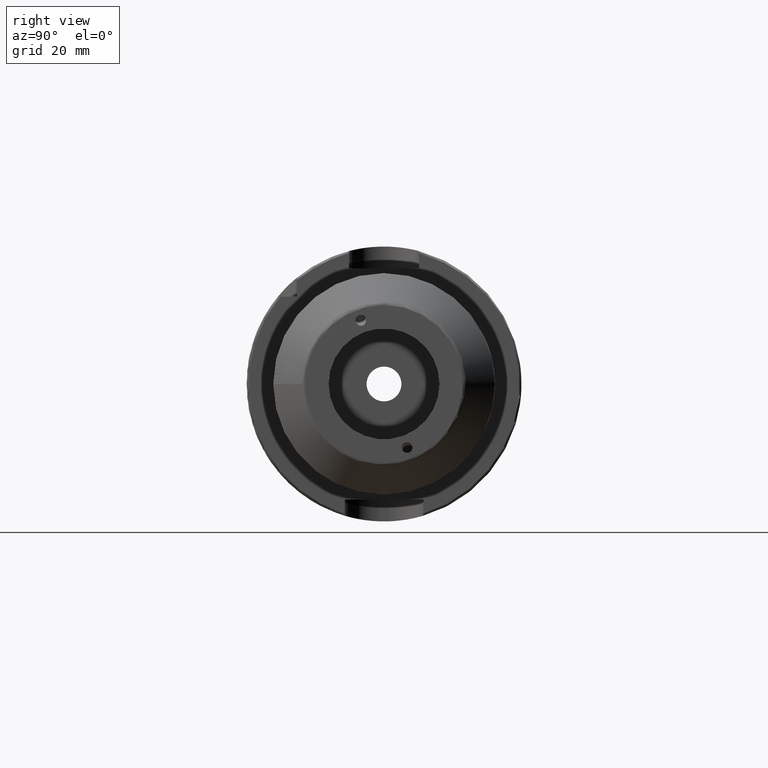
[diagram: clean part render]
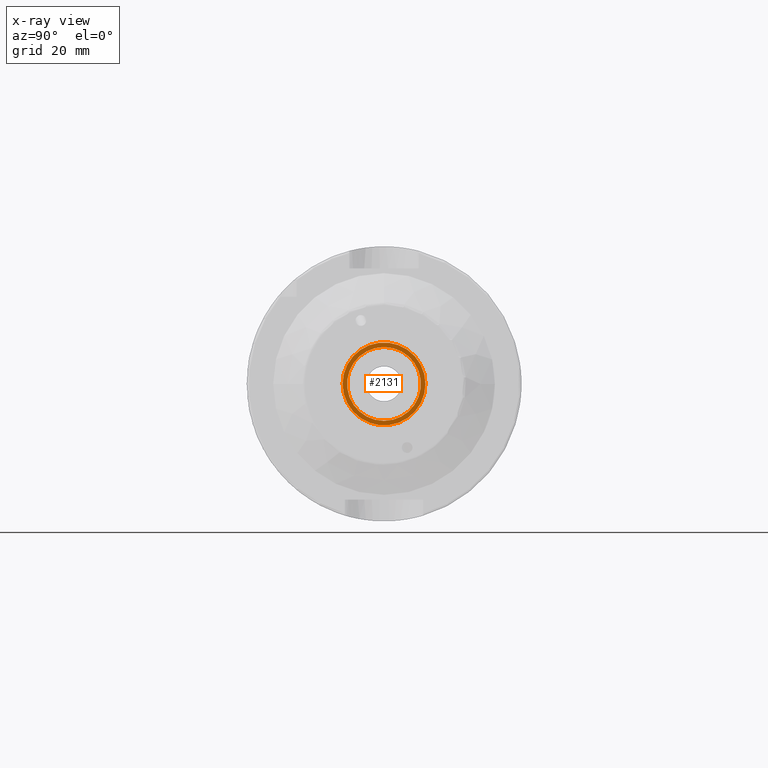
[diagram: x-ray — body ghosted, one internal face saturated and labeled with its STEP entity id]
A machine part, right view, then the same camera in x-ray: the body is ghosted and one INTERNAL B-rep face — a face not visible from any outside direction — is saturated and labeled: STEP entity #2131.
In plain terms, the highlighted planar face has unit normal (-1, 0, 0).
Its self-contained STEP definition (entity closure, byte-faithful):
#68=PLANE('',#2386);
#107=FACE_BOUND('',#472,.T.);
#336=FACE_OUTER_BOUND('',#471,.T.);
#471=EDGE_LOOP('',(#1953));
#472=EDGE_LOOP('',(#1954));
#809=CIRCLE('',#2377,8.458734);
#814=CIRCLE('',#2385,9.5);
#1023=VERTEX_POINT('',#4886);
#1027=VERTEX_POINT('',#4899);
#1334=EDGE_CURVE('',#1023,#1023,#809,.T.);
#1340=EDGE_CURVE('',#1027,#1027,#814,.T.);
#1953=ORIENTED_EDGE('',*,*,#1340,.F.);
#1954=ORIENTED_EDGE('',*,*,#1334,.T.);
#2131=ADVANCED_FACE('',(#336,#107),#68,.F.);
#2377=AXIS2_PLACEMENT_3D('',#4888,#2942,#2943);
#2385=AXIS2_PLACEMENT_3D('',#4901,#2959,#2960);
#2386=AXIS2_PLACEMENT_3D('',#4902,#2961,#2962);
#2942=DIRECTION('center_axis',(-1.,0.,0.));
#2943=DIRECTION('ref_axis',(0.,0.,1.));
#2959=DIRECTION('center_axis',(-1.,0.,0.));
#2960=DIRECTION('ref_axis',(0.,0.,1.));
#2961=DIRECTION('center_axis',(-1.,0.,0.));
#2962=DIRECTION('ref_axis',(0.,0.,1.));
#4886=CARTESIAN_POINT('',(17.,-1.03589615179389E-15,-8.458734));
#4888=CARTESIAN_POINT('Origin',(17.,0.,0.));
#4899=CARTESIAN_POINT('',(17.,-9.5,1.16341445918999E-15));
#4901=CARTESIAN_POINT('Origin',(17.,0.,0.));
#4902=CARTESIAN_POINT('Origin',(17.,7.5,0.));